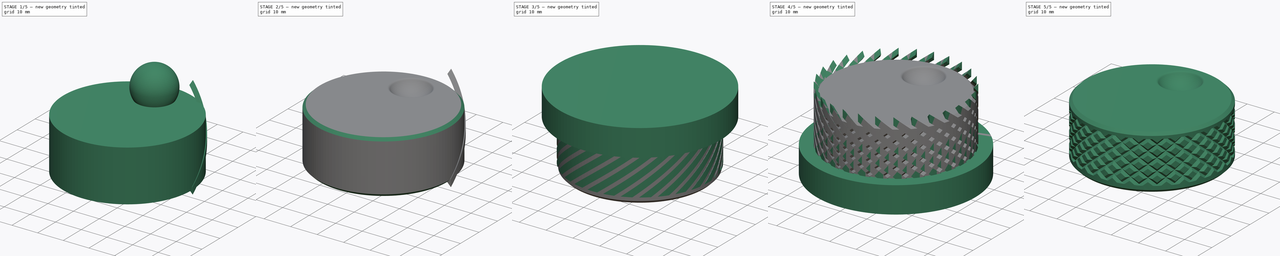
[diagram: build sequence overview — one tinted view per stage of 5, left to right]
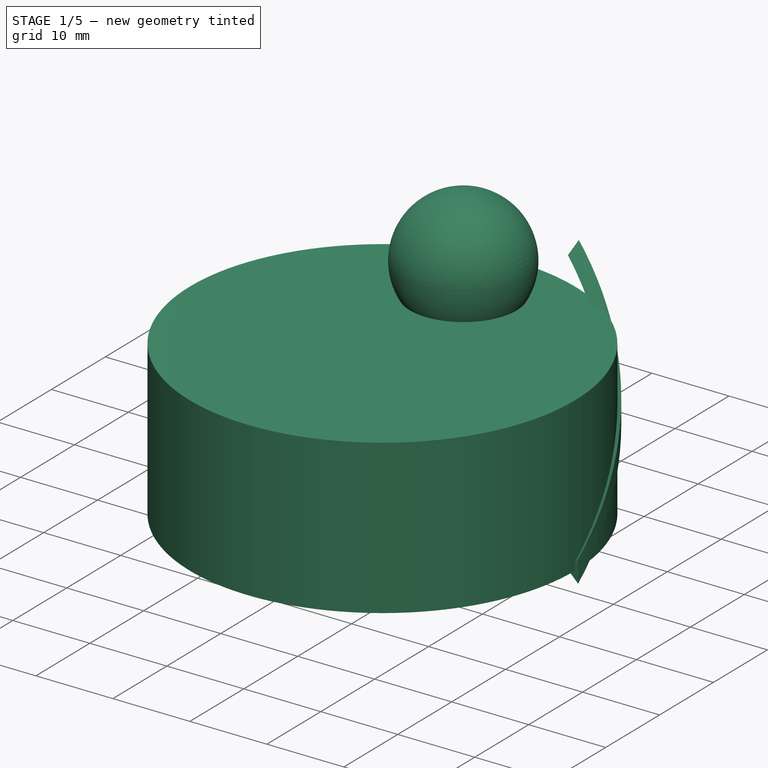
[diagram: stage 1 of 5 — iso view after this stage's code; geometry added in this stage tinted green]
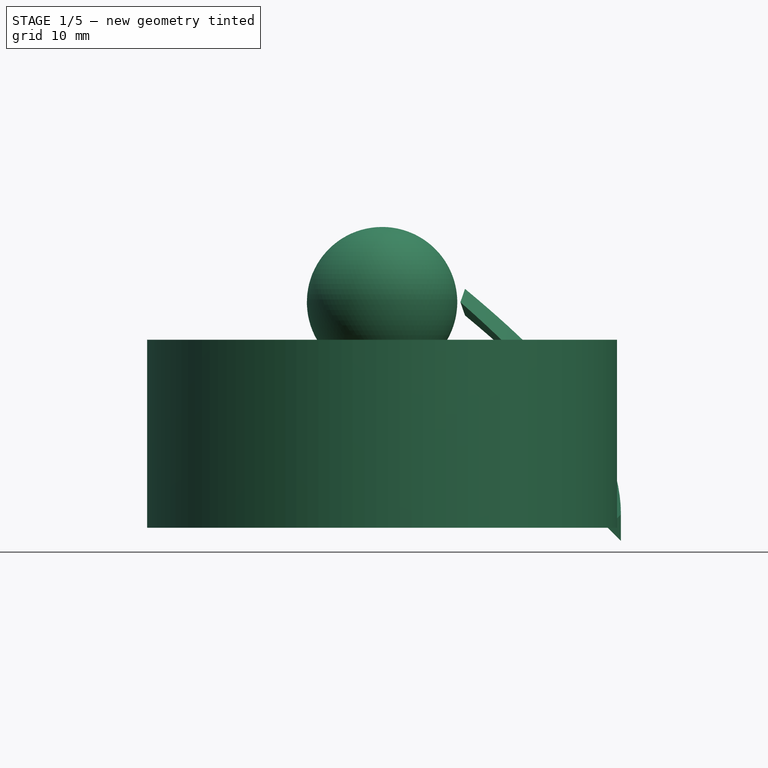
[diagram: stage 1 of 5 — front view after this stage's code; geometry added in this stage tinted green]
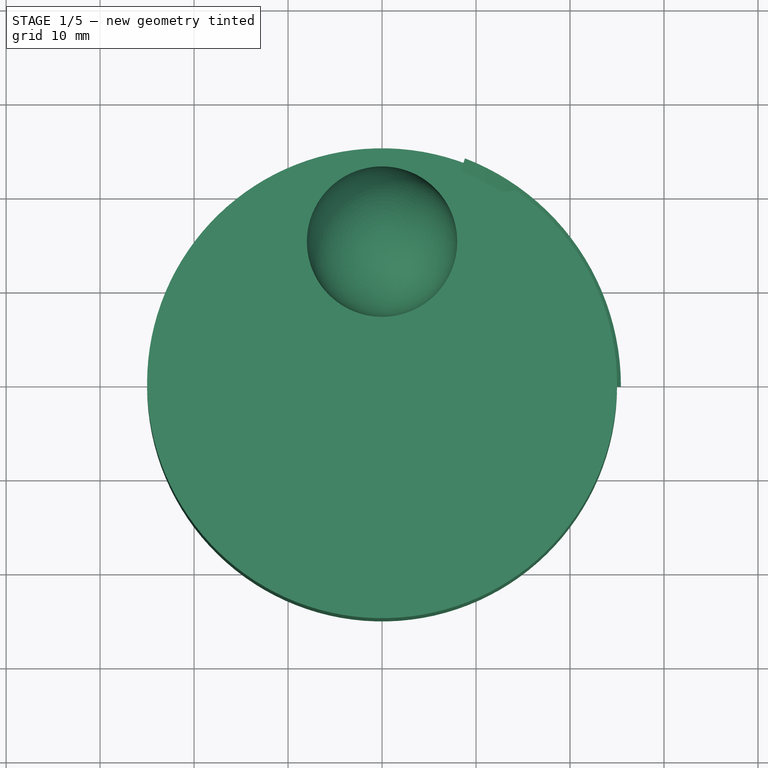
[diagram: stage 1 of 5 — top view after this stage's code; geometry added in this stage tinted green]
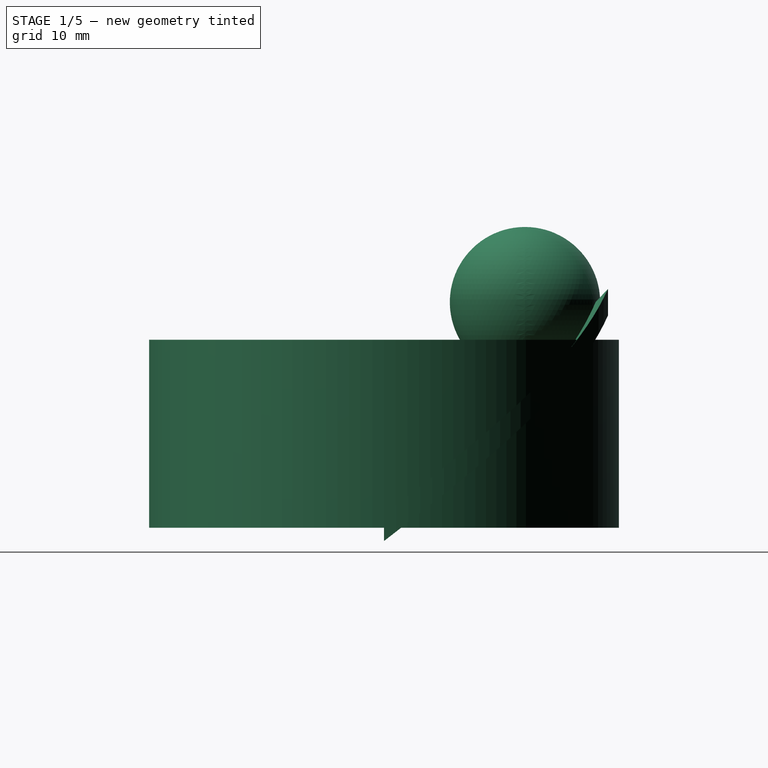
[diagram: stage 1 of 5 — right view after this stage's code; geometry added in this stage tinted green]
FCSTD DOCUMENT  (FreeCAD 0.18R4 (GitTag))
Label: KY040-Kappe
License: All rights reserved
LicenseURL: http://en.wikipedia.org/wiki/All_rights_reserved
objects: Part::Cut×8, Sketcher::SketchObject×5, PartDesign::Body×4, Part::Cylinder×4, PartDesign::Pad×2, Part::Helix×2, PartDesign::SubtractivePipe×2, Part::FeaturePython×2, Part::Sphere×1, PartDesign::Pocket×1, Part::Fillet×1, Part::Chamfer×1
note: 38 computed .brp shape members not serialized (recipe doc carries the construction recipe); baked Part::Feature solids carry a one-line shape summary decoded from their .brp

FEATURE [PartDesign::Body] Body001
  Group = -> [Sketch002,Pad001]
  Origin = -> Origin001
  Placement = pos=(0,0,5) rot=(0,0,1;0rad)
  Tip = -> Pad001
FEATURE [Part::Sphere] Sphere  label="Kugel"
  Angle1 = -90
  Angle2 = 90
  Angle3 = 360
  AttacherType = Attacher::AttachEngine3D
  Placement = pos=(0,15,24) rot=(0,0,1;0rad)
  Radius = 8
FEATURE [Sketcher::SketchObject] Sketch
  MapMode = 5
  Support = -> [XY_Plane]
  sketch-geometry (1):
    g0: Circle CenterX=0 CenterY=0 CenterZ=0 NormalX=0 NormalY=0 NormalZ=1 AngleXU=0 Radius=25
  constraints (3):
    c: Radius(g0) = 25
    c: DistanceX(g-1,g0) = 0
    c: DistanceY(g-1,g0) = 0
FEATURE [PartDesign::Pad] Pad
  Length = 20
  Length2 = 100
  Profile = -> Sketch
  Type = 0
FEATURE [Sketcher::SketchObject] Sketch003
  AttachmentOffset = pos=(0,0,5) rot=(0,0,1;0rad)
  MapMode = 5
  Placement = pos=(0,0,5) rot=(0,0,1;0rad)
  Support = -> [XY_Plane]
  sketch-geometry (1):
    g0: Circle CenterX=0 CenterY=0 CenterZ=0 NormalX=0 NormalY=0 NormalZ=1 AngleXU=0 Radius=18
  constraints (3):
    c: DistanceX(g-1,g0) = 0
    c: DistanceY(g-1,g0) = 0
    c: Radius(g0) = 18
FEATURE [PartDesign::Pocket] Pocket
  BaseFeature = -> Pad
  Length = 10
  Length2 = 100
  Profile = -> Sketch003
  Type = 1
FEATURE [PartDesign::SubtractivePipe] SubtractivePipe
  AuxilleryCurvelinear = false
  AuxillerySpineTangent = false
  Binormal = (0,0,0)
  Mode = 2
  Placement = pos=(0,0,0) rot=(1,0,0;1.5708rad)
  Profile = -> Sketch004
  Spine = -> Helix
  SpineTangent = false
  Transformation = 0
  Transition = 0
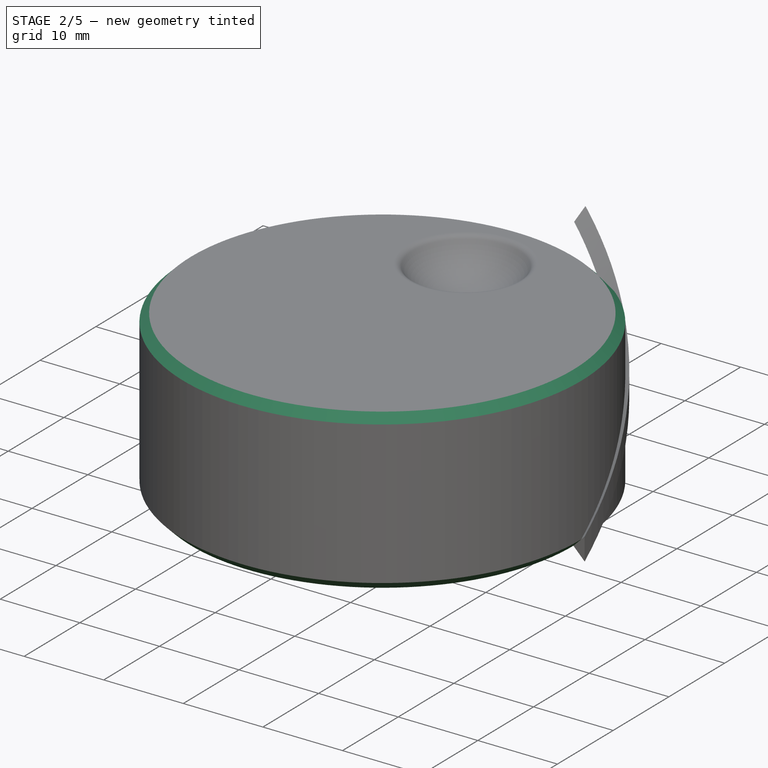
[diagram: stage 2 of 5 — iso view after this stage's code; geometry added in this stage tinted green]
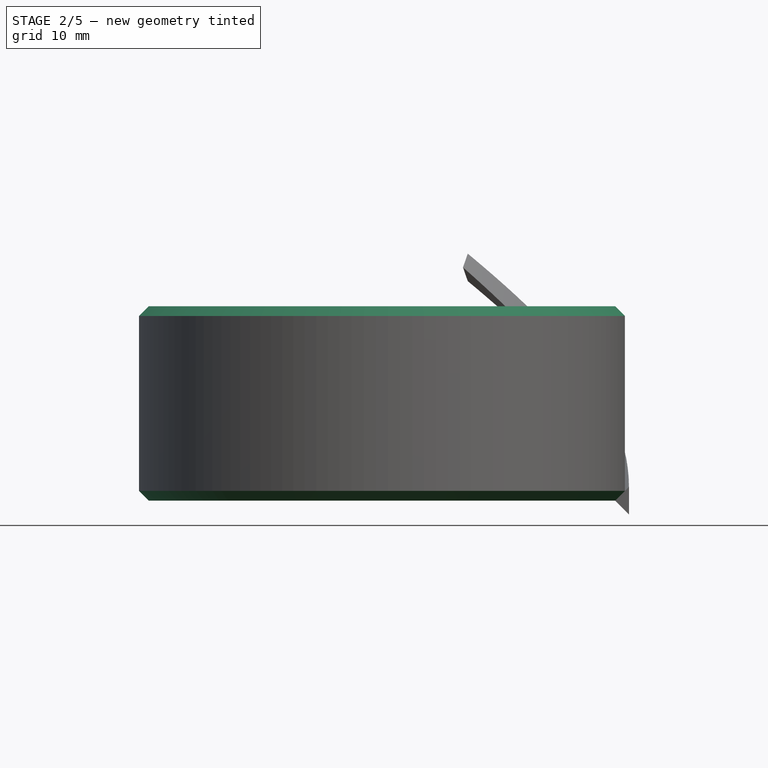
[diagram: stage 2 of 5 — front view after this stage's code; geometry added in this stage tinted green]
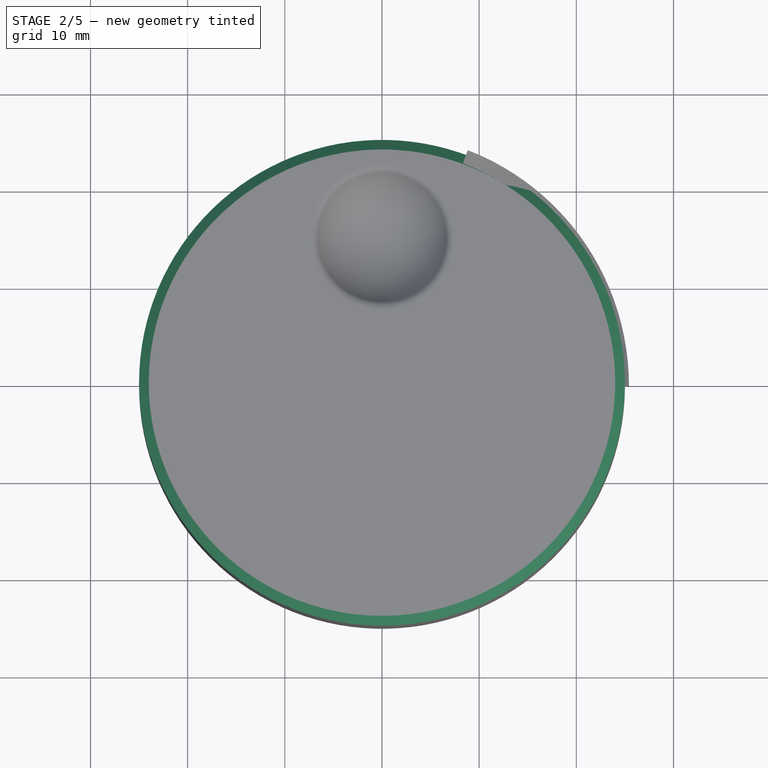
[diagram: stage 2 of 5 — top view after this stage's code; geometry added in this stage tinted green]
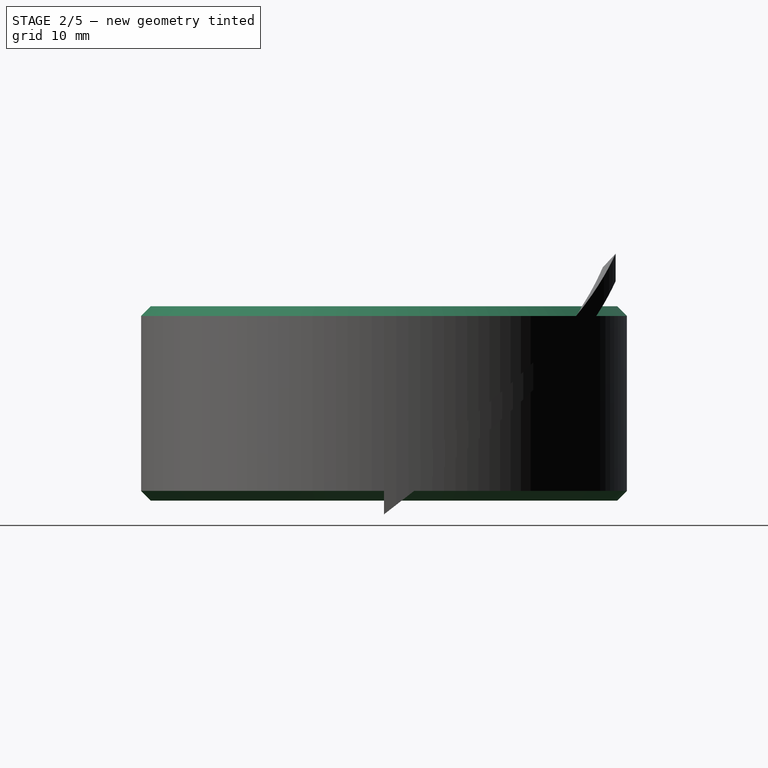
[diagram: stage 2 of 5 — right view after this stage's code; geometry added in this stage tinted green]
FEATURE [Sketcher::SketchObject] Sketch002
  MapMode = 5
  Support = -> [XY_Plane001]
  sketch-geometry (2):
    g0: LineSegment StartX=2.68468 StartY=1.55 StartZ=0 EndX=-2.68468 EndY=1.55 EndZ=0
    g1: ArcOfCircle CenterX=0 CenterY=0 CenterZ=0 NormalX=0 NormalY=0 NormalZ=1 AngleXU=0 Radius=3.1 StartAngle=2.61799 EndAngle=6.80678
  constraints (7):
    c: Radius(g1) = 3.1
    c: DistanceY(g1,g-1) = 0
    c: DistanceX(g-1,g1) = 0
    c: Coincident(g1,g0)
    c: DistanceY(g-1,g0) = 1.55
    c: DistanceY(g-1,g0) = 1.55
    c: Coincident(g0,g1)
FEATURE [PartDesign::Pad] Pad001
  Length = 13
  Length2 = 100
  Profile = -> Sketch002
  Type = 0
FEATURE [Part::Cut] Cut
  Base = -> Body
  Tool = -> Sphere
FEATURE [Part::Cut] Cut005
  Base = -> Cut
  Tool = -> Body001
FEATURE [Part::Fillet] Fillet
  Base = -> Cut005
  Edges = 1 edges r=1: [Edge5]
FEATURE [Part::Chamfer] Chamfer  label="Drehknopf"
  Base = -> Fillet
  Edges = 2 edges r=1: [Edge2,Edge6]
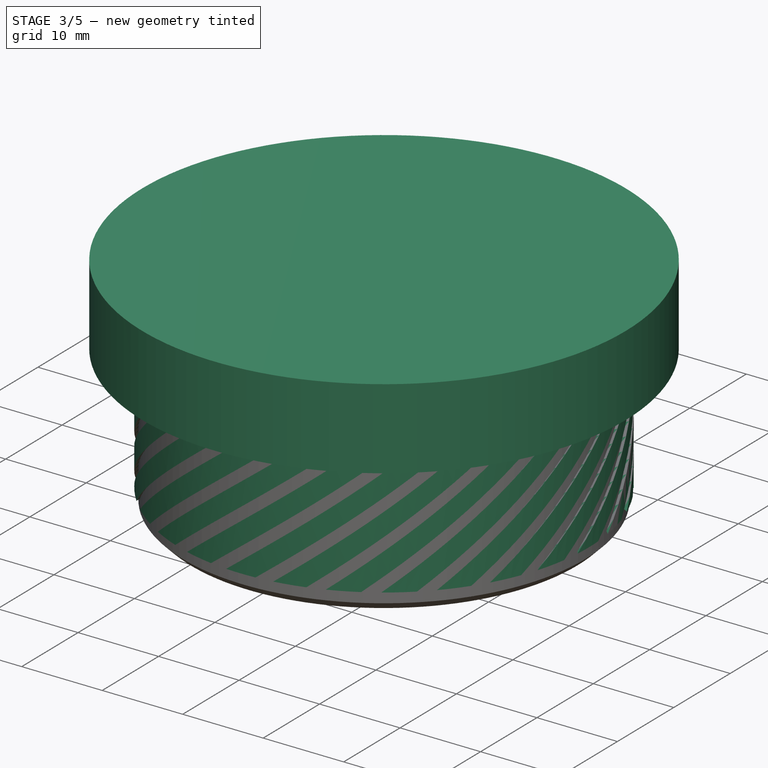
[diagram: stage 3 of 5 — iso view after this stage's code; geometry added in this stage tinted green]
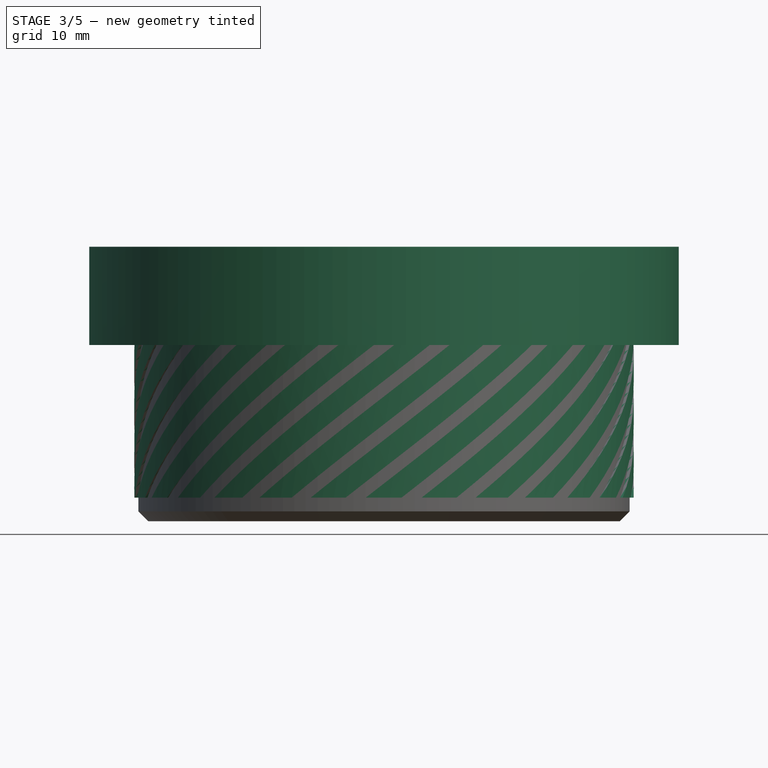
[diagram: stage 3 of 5 — front view after this stage's code; geometry added in this stage tinted green]
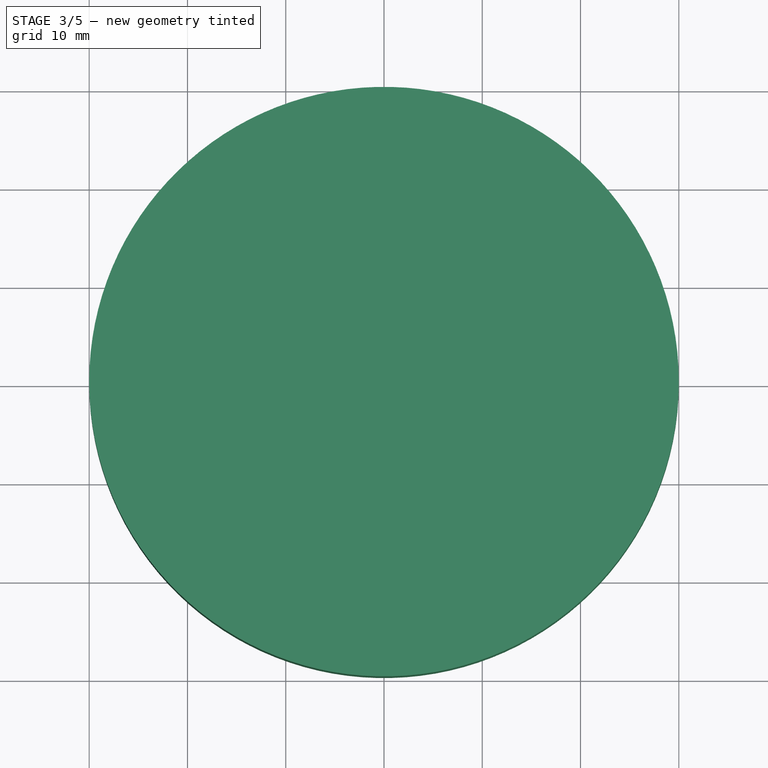
[diagram: stage 3 of 5 — top view after this stage's code; geometry added in this stage tinted green]
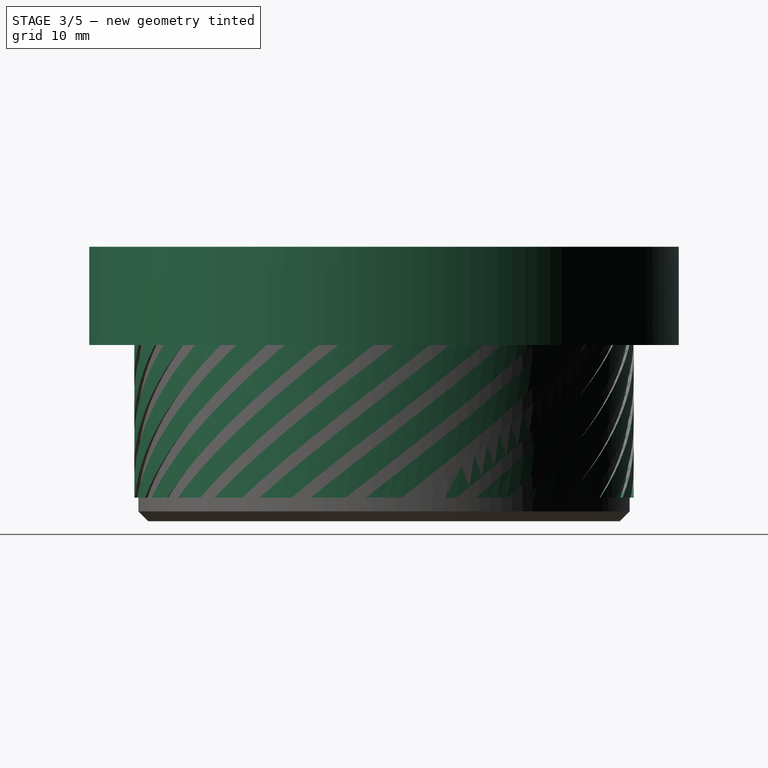
[diagram: stage 3 of 5 — right view after this stage's code; geometry added in this stage tinted green]
FEATURE [Part::Cylinder] Cylinder001  label="Zylinder001"
  Angle = 360
  AttacherType = Attacher::AttachEngine3D
  Height = 10
  Placement = pos=(0,0,-7.6) rot=(0,0,1;0rad)
  Radius = 30
FEATURE [Part::Cylinder] Cylinder003  label="Zylinder003"
  Angle = 360
  AttacherType = Attacher::AttachEngine3D
  Height = 10
  Placement = pos=(0,0,17.928) rot=(0,0,1;0rad)
  Radius = 30
FEATURE [PartDesign::Body] Body002
  Group = -> [Sketch004,SubtractivePipe]
  Origin = -> Origin002
  Placement = pos=(0,0,-2) rot=(0,0,1;0rad)
  Tip = -> SubtractivePipe
FEATURE [Part::FeaturePython] Array  # Draft array (typed FeaturePython)
  Angle = 360
  ArrayType = 1
  Axis = (0,0,1)
  Base = -> Body002
  Center = (0,0,0)
  Fuse = false
  IntervalAxis = (0,0,0)
  IntervalX = (1,0,0)
  IntervalY = (0,1,0)
  IntervalZ = (0,0,1)
  NumberPolar = 28
  NumberX = 2
  NumberY = 2
  NumberZ = 1
FEATURE [Part::Cut] Cut002
  Base = -> Array
  Tool = -> Cylinder001
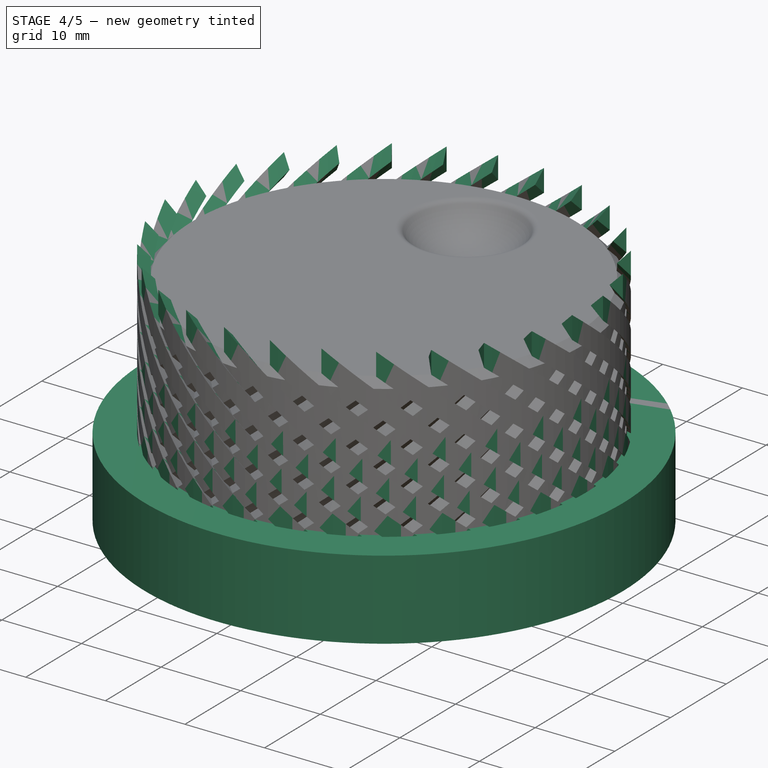
[diagram: stage 4 of 5 — iso view after this stage's code; geometry added in this stage tinted green]
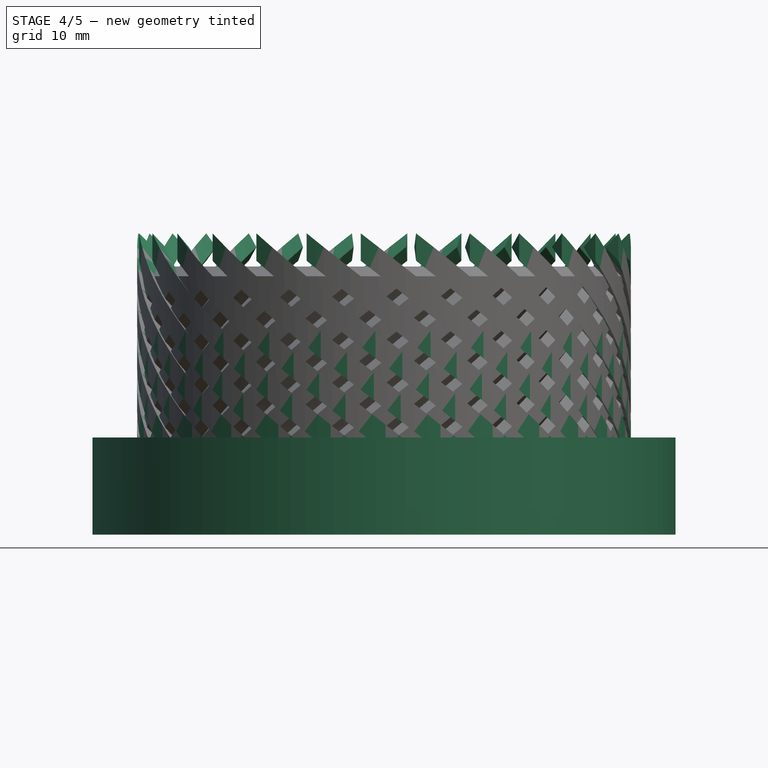
[diagram: stage 4 of 5 — front view after this stage's code; geometry added in this stage tinted green]
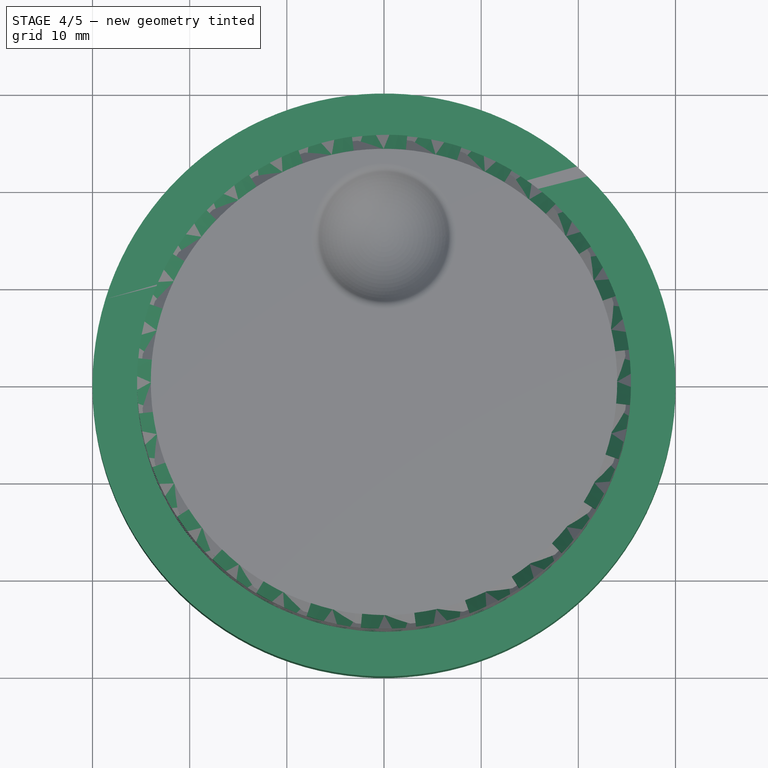
[diagram: stage 4 of 5 — top view after this stage's code; geometry added in this stage tinted green]
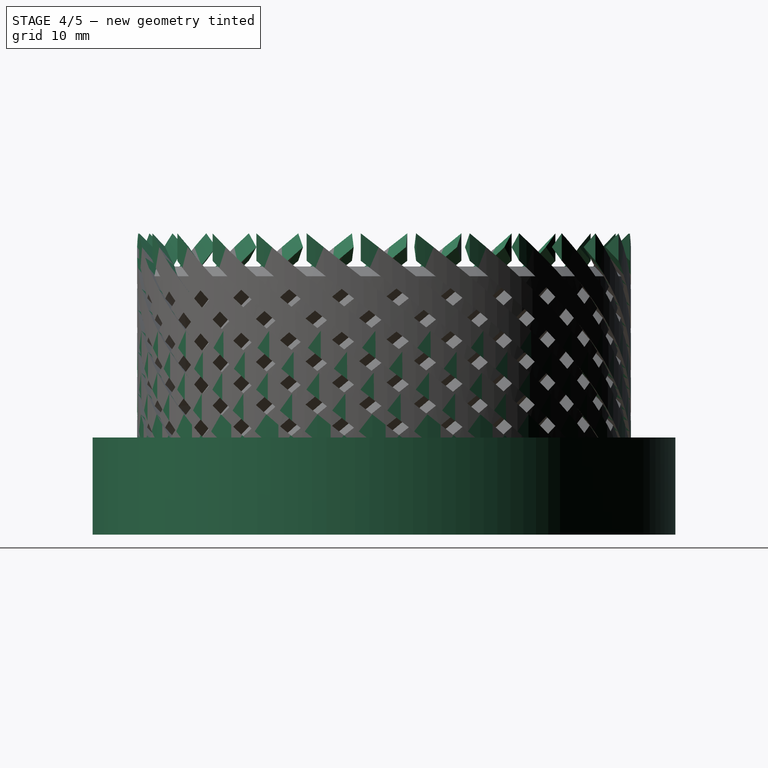
[diagram: stage 4 of 5 — right view after this stage's code; geometry added in this stage tinted green]
FEATURE [PartDesign::Body] Body  label="Outer"
  Group = -> [Sketch,Pad,Sketch003,Pocket]
  Origin = -> Origin
  Tip = -> Pocket
FEATURE [Part::Helix] Helix
  Angle = 0
  AttacherType = Attacher::AttachEngine3D
  Height = 24
  LocalCoord = 0
  Pitch = 124
  Placement = pos=(0,0,-2) rot=(0,0,1;0rad)
  Radius = 25
  Style = 1
FEATURE [Sketcher::SketchObject] Sketch004
  MapMode = 5
  Placement = pos=(0,0,0) rot=(1,0,0;1.5708rad)
  Support = -> [XZ_Plane002]
  sketch-geometry (4):
    g0: LineSegment StartX=25.4142 StartY=1.41421 StartZ=0 EndX=24 EndY=0 EndZ=0
    g1: LineSegment StartX=24 StartY=0 StartZ=0 EndX=25.4142 EndY=-1.41421 EndZ=0
    g2: LineSegment StartX=25.4142 StartY=-1.41421 StartZ=0 EndX=25.4142 EndY=1.41421 EndZ=0
    g3: Circle [constr] CenterX=24.933 CenterY=3.4e-15 CenterZ=0 NormalX=0 NormalY=0 NormalZ=1 AngleXU=0 Radius=1.49383
  constraints (11):
    c: Coincident(g0,g1)
    c: Coincident(g1,g2)
    c: Coincident(g2,g0)
    c: Equal(g0,g1)
    c: PointOnObject(g1,g3)
    c: PointOnObject(g2,g3)
    c: DistanceX(g-1,g0) = 24
    c: Angle(g1,g0) = 1.5708
    c: Angle(g-1,g2) = 1.5708
    c: Distance(g1) = 2
    c: DistanceY(g-1,g0) = 0
FEATURE [Part::Helix] Helix001
  Angle = 0
  AttacherType = Attacher::AttachEngine3D
  Height = 24
  LocalCoord = 1
  Pitch = 124
  Placement = pos=(0,0,-2) rot=(0,0,1;0rad)
  Radius = 25
  Style = 1
FEATURE [Sketcher::SketchObject] Sketch005
  MapMode = 5
  Placement = pos=(0,0,0) rot=(1,0,0;1.5708rad)
  Support = -> [XZ_Plane003]
  sketch-geometry (4):
    g0: LineSegment StartX=25.4142 StartY=1.41421 StartZ=0 EndX=24 EndY=0 EndZ=0
    g1: LineSegment StartX=24 StartY=0 StartZ=0 EndX=25.4142 EndY=-1.41421 EndZ=0
    g2: LineSegment StartX=25.4142 StartY=-1.41421 StartZ=0 EndX=25.4142 EndY=1.41421 EndZ=0
    g3: Circle [constr] CenterX=24.933 CenterY=3.4e-15 CenterZ=0 NormalX=0 NormalY=0 NormalZ=1 AngleXU=0 Radius=1.49383
  constraints (11):
    c: Coincident(g0,g1)
    c: Coincident(g1,g2)
    c: Coincident(g2,g0)
    c: Equal(g0,g1)
    c: PointOnObject(g1,g3)
    c: PointOnObject(g2,g3)
    c: DistanceX(g-1,g0) = 24
    c: Angle(g1,g0) = 1.5708
    c: Angle(g-1,g2) = 1.5708
    c: Distance(g1) = 2
    c: DistanceY(g-1,g0) = 0
FEATURE [PartDesign::SubtractivePipe] SubtractivePipe001
  AuxilleryCurvelinear = false
  AuxillerySpineTangent = false
  Binormal = (0,0,0)
  Mode = 2
  Placement = pos=(0,0,0) rot=(1,0,0;1.5708rad)
  Profile = -> Sketch005
  Spine = -> Helix001
  SpineTangent = false
  Transformation = 0
  Transition = 0
FEATURE [PartDesign::Body] Body003
  Group = -> [Sketch005,SubtractivePipe001]
  Origin = -> Origin003
  Placement = pos=(0,0,-2) rot=(0,0,1;0rad)
  Tip = -> SubtractivePipe001
FEATURE [Part::FeaturePython] Array001  # Draft array (typed FeaturePython)
  Angle = 360
  ArrayType = 1
  Axis = (0,0,1)
  Base = -> Body003
  Center = (0,0,0)
  Fuse = false
  IntervalAxis = (0,0,0)
  IntervalX = (1,0,0)
  IntervalY = (0,1,0)
  IntervalZ = (0,0,1)
  NumberPolar = 28
  NumberX = 2
  NumberY = 2
  NumberZ = 1
FEATURE [Part::Cylinder] Cylinder  label="Zylinder"
  Angle = 360
  AttacherType = Attacher::AttachEngine3D
  Height = 10
  Placement = pos=(0,0,-7.6) rot=(0,0,1;0rad)
  Radius = 30
FEATURE [Part::Cut] Cut004  label="Rändelung1"
  Base = -> Cut002
  Tool = -> Cylinder003
FEATURE [Part::Cut] Cut006
  Base = -> Chamfer
  Tool = -> Cut004
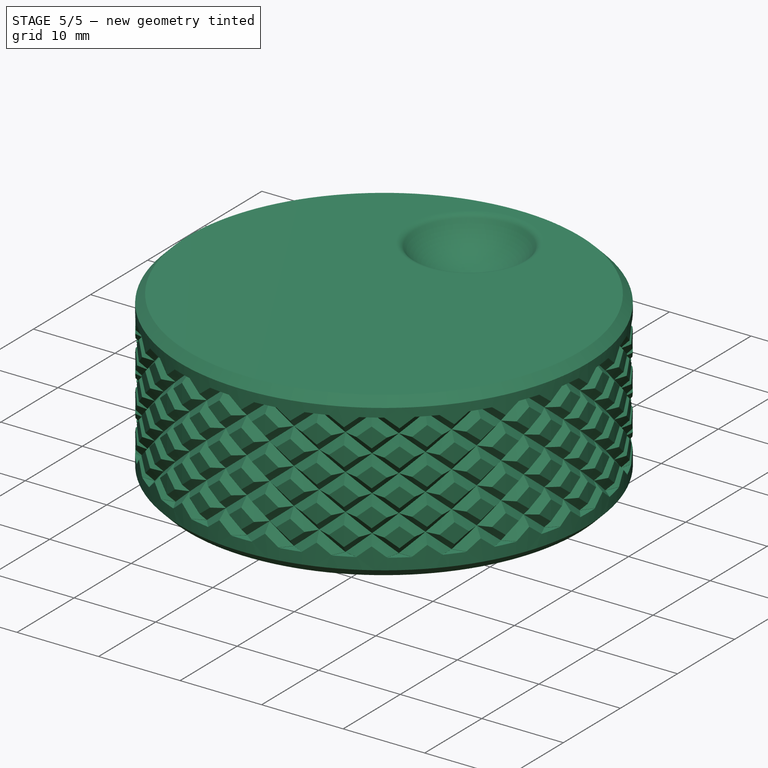
[diagram: stage 5 of 5 — iso view after this stage's code; geometry added in this stage tinted green]
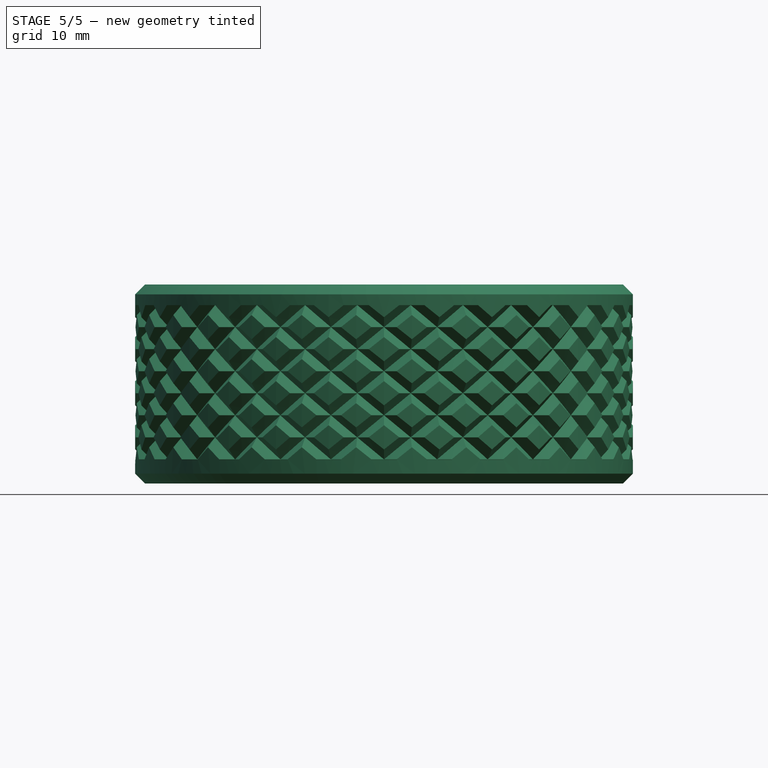
[diagram: stage 5 of 5 — front view after this stage's code; geometry added in this stage tinted green]
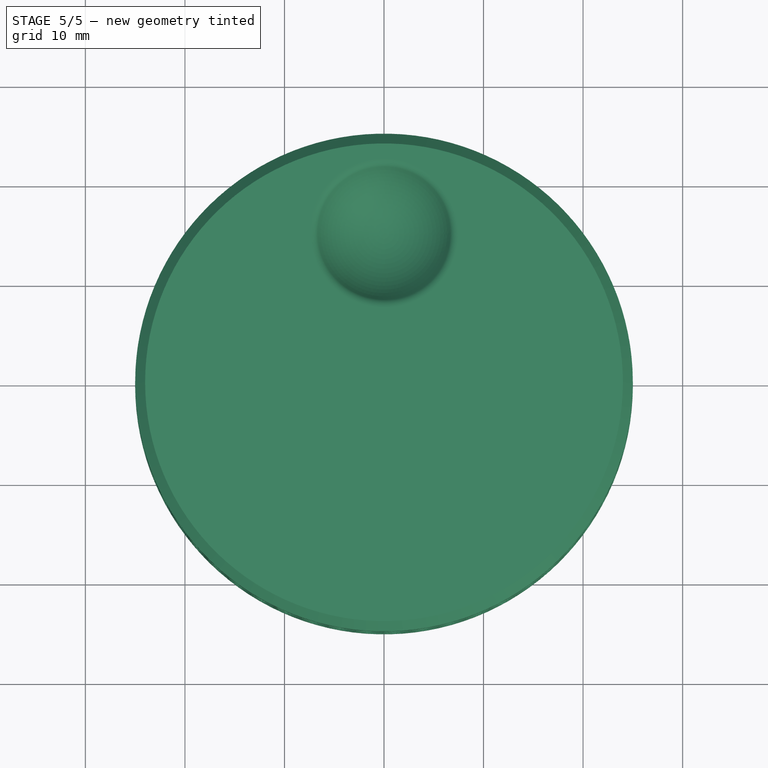
[diagram: stage 5 of 5 — top view after this stage's code; geometry added in this stage tinted green]
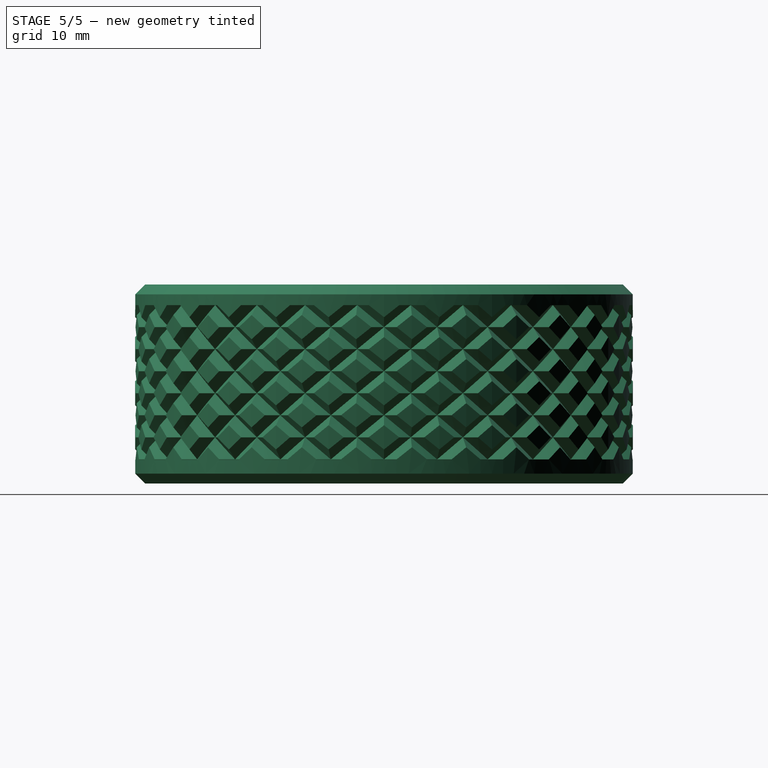
[diagram: stage 5 of 5 — right view after this stage's code; geometry added in this stage tinted green]
FEATURE [Part::Cylinder] Cylinder002  label="Zylinder002"
  Angle = 360
  AttacherType = Attacher::AttachEngine3D
  Height = 10
  Placement = pos=(0,0,17.928) rot=(0,0,1;0rad)
  Radius = 30
FEATURE [Part::Cut] Cut001
  Base = -> Array001
  Tool = -> Cylinder
FEATURE [Part::Cut] Cut003  label="Rändelung2"
  Base = -> Cut001
  Tool = -> Cylinder002
FEATURE [Part::Cut] Cut007
  Base = -> Cut006
  Tool = -> Cut003
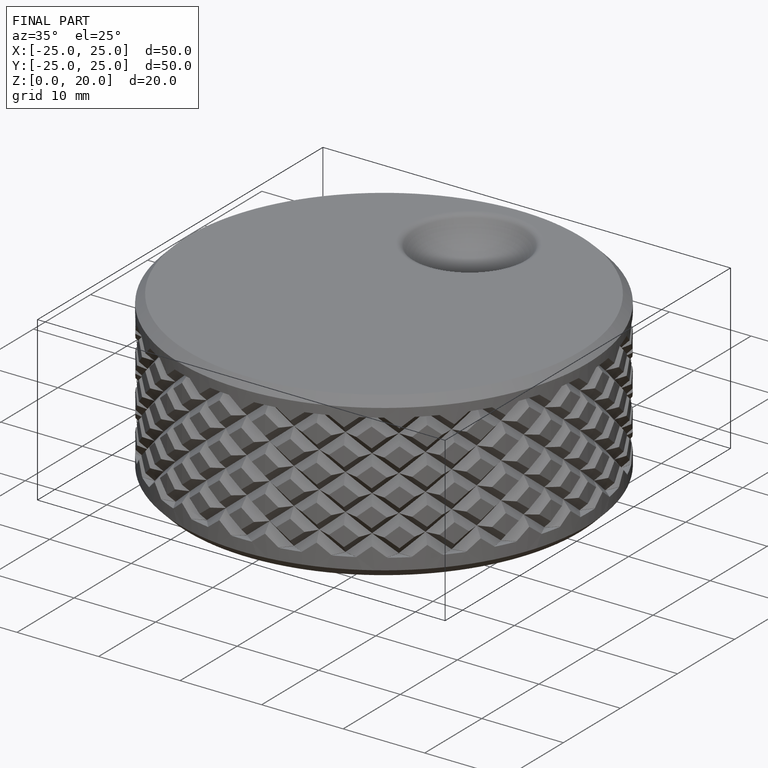
[diagram: finished part — iso view with bounding-box wireframe]
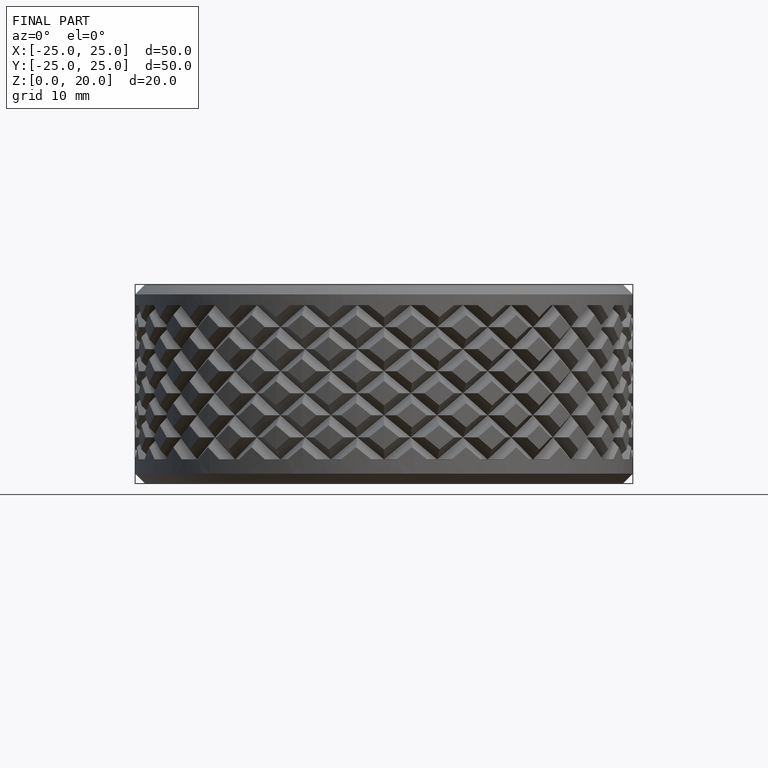
[diagram: finished part — front view with bounding-box wireframe]
